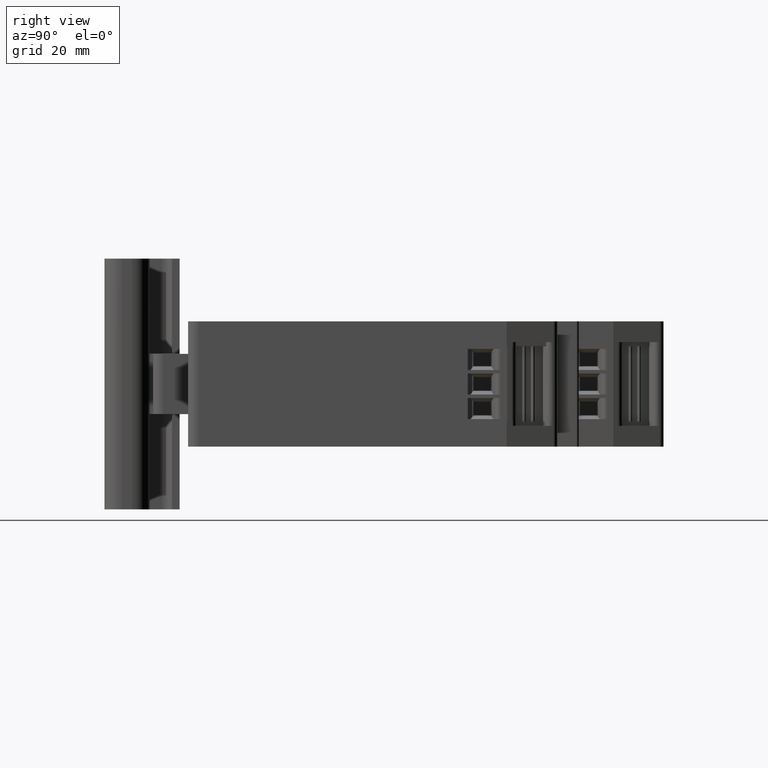
[diagram: clean part render]
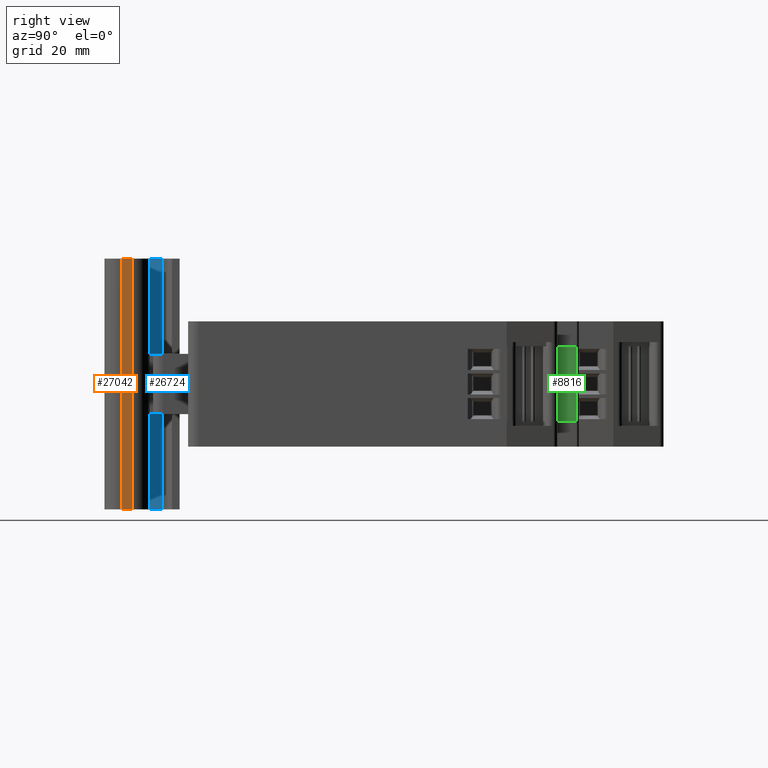
[diagram: same view with three faces highlighted in distinct colors, each labeled with its STEP entity id]
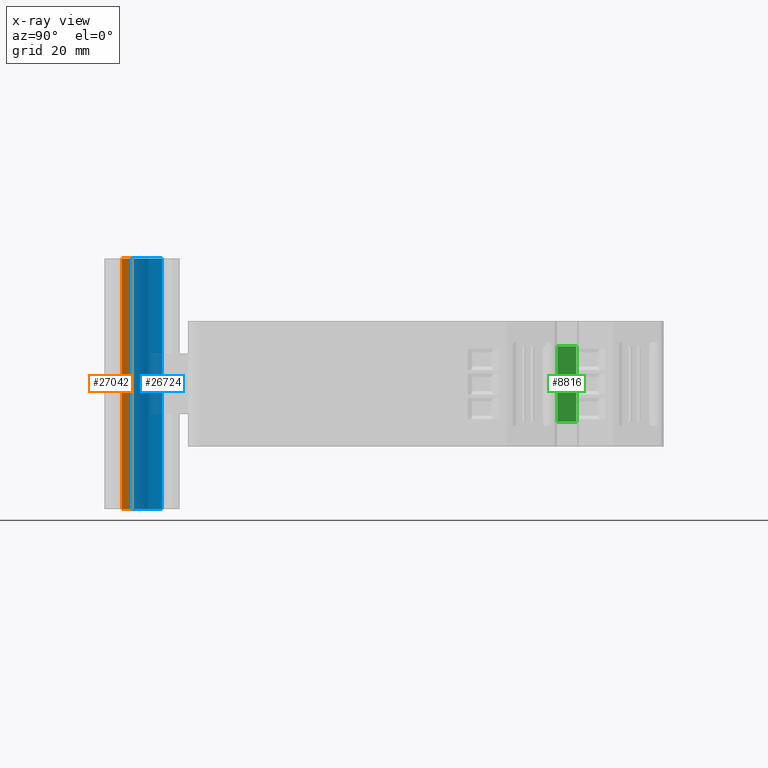
[diagram: x-ray of the same camera — body ghosted, the three highlighted faces saturated]
A machine part, right view with three faces highlighted in distinct colors.
The next image is the same camera in x-ray (body ghosted, the three faces saturated) — at least one of them is partly hidden behind the body in this view.
Their STEP definitions:

[orange] entity #27042 — the highlighted planar face has unit normal (1, 0, 0).
#26984=CARTESIAN_POINT('',(17.750000000000000,-1.999999999999996,25.0));
#26985=VERTEX_POINT('',#26984);
#26993=CARTESIAN_POINT('',(17.750000000000000,-1.999999999999996,-25.0));
#26994=VERTEX_POINT('',#26993);
#26995=CARTESIAN_POINT('',(17.750000000000000,-1.999999999999996,-25.0));
#26996=DIRECTION('',(0.0,0.0,1.0));
#26997=VECTOR('',#26996,50.0);
#26998=LINE('',#26995,#26997);
#26999=EDGE_CURVE('',#26994,#26985,#26998,.T.);
#27012=CARTESIAN_POINT('',(17.750000000000000,-1.999999999999996,-25.0));
#27013=DIRECTION('',(1.0,0.0,0.0));
#27014=DIRECTION('',(0.0,0.0,-1.0));
#27015=AXIS2_PLACEMENT_3D('',#27012,#27013,#27014);
#27016=PLANE('',#27015);
#27017=CARTESIAN_POINT('',(17.750000000000000,-3.999999999999996,25.0));
#27018=VERTEX_POINT('',#27017);
#27019=CARTESIAN_POINT('',(17.750000000000000,-1.999999999999996,25.0));
#27020=DIRECTION('',(0.0,-1.0,0.0));
#27021=VECTOR('',#27020,2.0);
#27022=LINE('',#27019,#27021);
#27023=EDGE_CURVE('',#26985,#27018,#27022,.T.);
#27024=ORIENTED_EDGE('',*,*,#27023,.T.);
#27025=CARTESIAN_POINT('',(17.750000000000000,-3.999999999999996,-25.0));
#27026=VERTEX_POINT('',#27025);
#27027=CARTESIAN_POINT('',(17.750000000000000,-3.999999999999996,-25.0));
#27028=DIRECTION('',(0.0,0.0,1.0));
#27029=VECTOR('',#27028,50.0);
#27030=LINE('',#27027,#27029);
#27031=EDGE_CURVE('',#27026,#27018,#27030,.T.);
#27032=ORIENTED_EDGE('',*,*,#27031,.F.);
#27033=CARTESIAN_POINT('',(17.750000000000000,-1.999999999999996,-25.0));
#27034=DIRECTION('',(0.0,-1.0,0.0));
#27035=VECTOR('',#27034,2.0);
#27036=LINE('',#27033,#27035);
#27037=EDGE_CURVE('',#26994,#27026,#27036,.T.);
#27038=ORIENTED_EDGE('',*,*,#27037,.F.);
#27039=ORIENTED_EDGE('',*,*,#26999,.T.);
#27040=EDGE_LOOP('',(#27024,#27032,#27038,#27039));
#27041=FACE_OUTER_BOUND('',#27040,.T.);
#27042=ADVANCED_FACE('',(#27041),#27016,.T.);

[blue] entity #26724 — the highlighted planar face has unit normal (1, 0, 0).
#26659=CARTESIAN_POINT('',(-12.750000000000000,4.000000000000004,25.0));
#26660=VERTEX_POINT('',#26659);
#26668=CARTESIAN_POINT('',(-12.750000000000000,4.000000000000004,-25.0));
#26669=VERTEX_POINT('',#26668);
#26670=CARTESIAN_POINT('',(-12.750000000000000,4.000000000000004,-25.0));
#26671=DIRECTION('',(0.0,0.0,1.0));
#26672=VECTOR('',#26671,50.0);
#26673=LINE('',#26670,#26672);
#26674=EDGE_CURVE('',#26669,#26660,#26673,.T.);
#26694=CARTESIAN_POINT('',(-12.750000000000000,4.000000000000004,-25.0));
#26695=DIRECTION('',(1.0,0.0,0.0));
#26696=DIRECTION('',(0.0,0.0,-1.0));
#26697=AXIS2_PLACEMENT_3D('',#26694,#26695,#26696);
#26698=PLANE('',#26697);
#26699=CARTESIAN_POINT('',(-12.749999999999996,-4.000000000000004,25.0));
#26700=VERTEX_POINT('',#26699);
#26701=CARTESIAN_POINT('',(-12.750000000000000,4.000000000000004,25.0));
#26702=DIRECTION('',(0.0,-1.0,0.0));
#26703=VECTOR('',#26702,8.000000000000007);
#26704=LINE('',#26701,#26703);
#26705=EDGE_CURVE('',#26660,#26700,#26704,.T.);
#26706=ORIENTED_EDGE('',*,*,#26705,.T.);
#26707=CARTESIAN_POINT('',(-12.749999999999996,-4.000000000000004,-25.0));
#26708=VERTEX_POINT('',#26707);
#26709=CARTESIAN_POINT('',(-12.749999999999996,-4.000000000000004,-25.0));
#26710=DIRECTION('',(0.0,0.0,1.0));
#26711=VECTOR('',#26710,50.0);
#26712=LINE('',#26709,#26711);
#26713=EDGE_CURVE('',#26708,#26700,#26712,.T.);
#26714=ORIENTED_EDGE('',*,*,#26713,.F.);
#26715=CARTESIAN_POINT('',(-12.750000000000000,4.000000000000004,-25.0));
#26716=DIRECTION('',(0.0,-1.0,0.0));
#26717=VECTOR('',#26716,8.000000000000007);
#26718=LINE('',#26715,#26717);
#26719=EDGE_CURVE('',#26669,#26708,#26718,.T.);
#26720=ORIENTED_EDGE('',*,*,#26719,.F.);
#26721=ORIENTED_EDGE('',*,*,#26674,.T.);
#26722=EDGE_LOOP('',(#26706,#26714,#26720,#26721));
#26723=FACE_OUTER_BOUND('',#26722,.T.);
#26724=ADVANCED_FACE('',(#26723),#26698,.T.);

[green] entity #8816 — the highlighted planar face has unit normal (-1, 0, 0).
#1532=CARTESIAN_POINT('',(-190.453884547556980,103.600269587342010,14.984999999999999));
#1533=VERTEX_POINT('',#1532);
#1541=CARTESIAN_POINT('',(-190.453884547556980,103.600269587342010,-0.015000000000000));
#1542=VERTEX_POINT('',#1541);
#1543=CARTESIAN_POINT('',(-190.453884547556980,103.600269587342010,-0.015000000000000));
#1544=DIRECTION('',(0.0,0.0,1.0));
#1545=VECTOR('',#1544,15.0);
#1546=LINE('',#1543,#1545);
#1547=EDGE_CURVE('',#1542,#1533,#1546,.T.);
#2197=CARTESIAN_POINT('',(-190.453884547556980,99.800269587342100,14.984999999999999));
#2198=VERTEX_POINT('',#2197);
#2205=CARTESIAN_POINT('',(-190.453884547556980,103.600269587342010,14.984999999999999));
#2206=DIRECTION('',(0.0,-1.0,0.0));
#2207=VECTOR('',#2206,3.799999999999912);
#2208=LINE('',#2205,#2207);
#2209=EDGE_CURVE('',#1533,#2198,#2208,.T.);
#4005=CARTESIAN_POINT('',(-190.453884547556980,99.800269587342100,-0.015000000000000));
#4006=VERTEX_POINT('',#4005);
#4007=CARTESIAN_POINT('',(-190.453884547556980,103.600269587342010,-0.015000000000000));
#4008=DIRECTION('',(0.0,-1.0,0.0));
#4009=VECTOR('',#4008,3.799999999999912);
#4010=LINE('',#4007,#4009);
#4011=EDGE_CURVE('',#1542,#4006,#4010,.T.);
#8800=CARTESIAN_POINT('',(-190.453884547556980,99.610269587342103,15.734999999999999));
#8801=DIRECTION('',(-1.0,0.0,0.0));
#8802=DIRECTION('',(0.0,0.0,1.0));
#8803=AXIS2_PLACEMENT_3D('',#8800,#8801,#8802);
#8804=PLANE('',#8803);
#8805=CARTESIAN_POINT('',(-190.453884547556980,99.800269587342100,-0.015000000000000));
#8806=DIRECTION('',(0.0,0.0,1.0));
#8807=VECTOR('',#8806,15.0);
#8808=LINE('',#8805,#8807);
#8809=EDGE_CURVE('',#4006,#2198,#8808,.T.);
#8810=ORIENTED_EDGE('',*,*,#8809,.F.);
#8811=ORIENTED_EDGE('',*,*,#4011,.F.);
#8812=ORIENTED_EDGE('',*,*,#1547,.T.);
#8813=ORIENTED_EDGE('',*,*,#2209,.T.);
#8814=EDGE_LOOP('',(#8810,#8811,#8812,#8813));
#8815=FACE_OUTER_BOUND('',#8814,.T.);
#8816=ADVANCED_FACE('',(#8815),#8804,.F.);